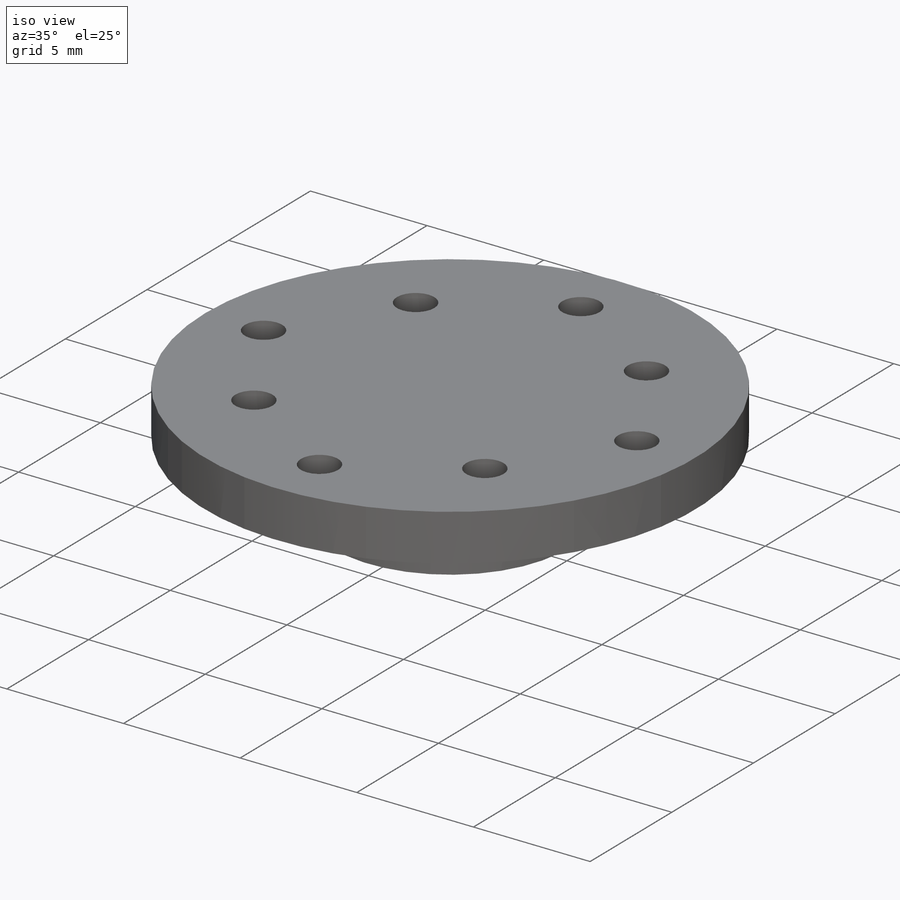
[diagram: iso view]
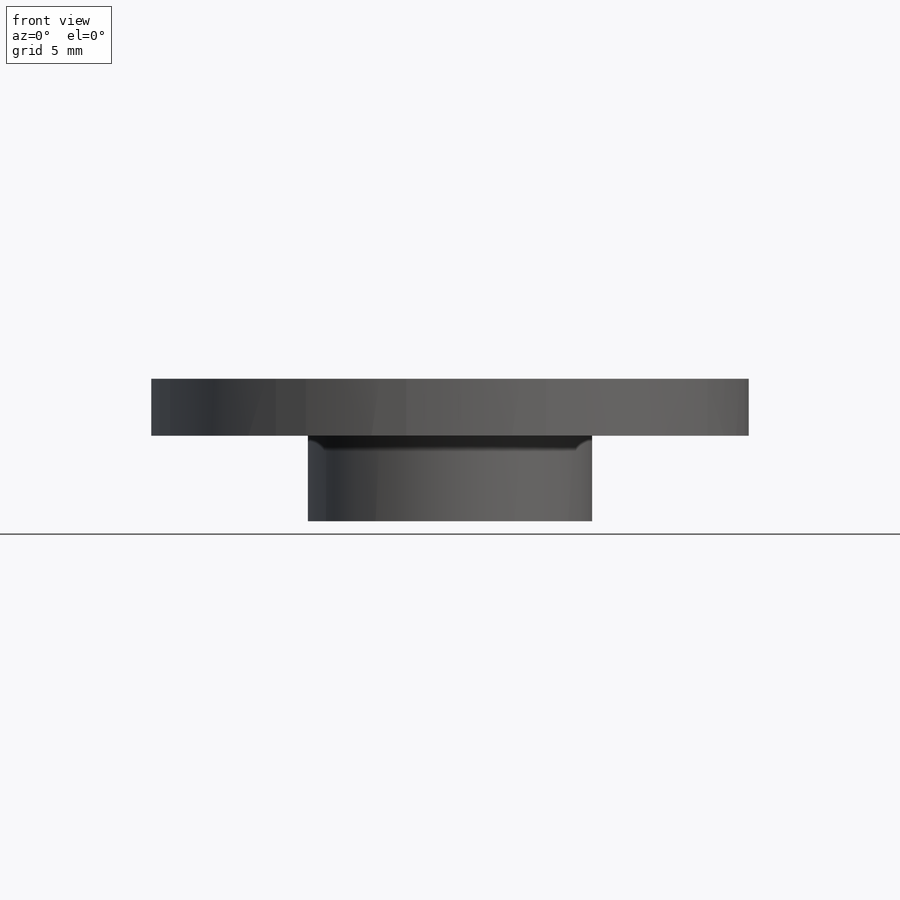
[diagram: front view]
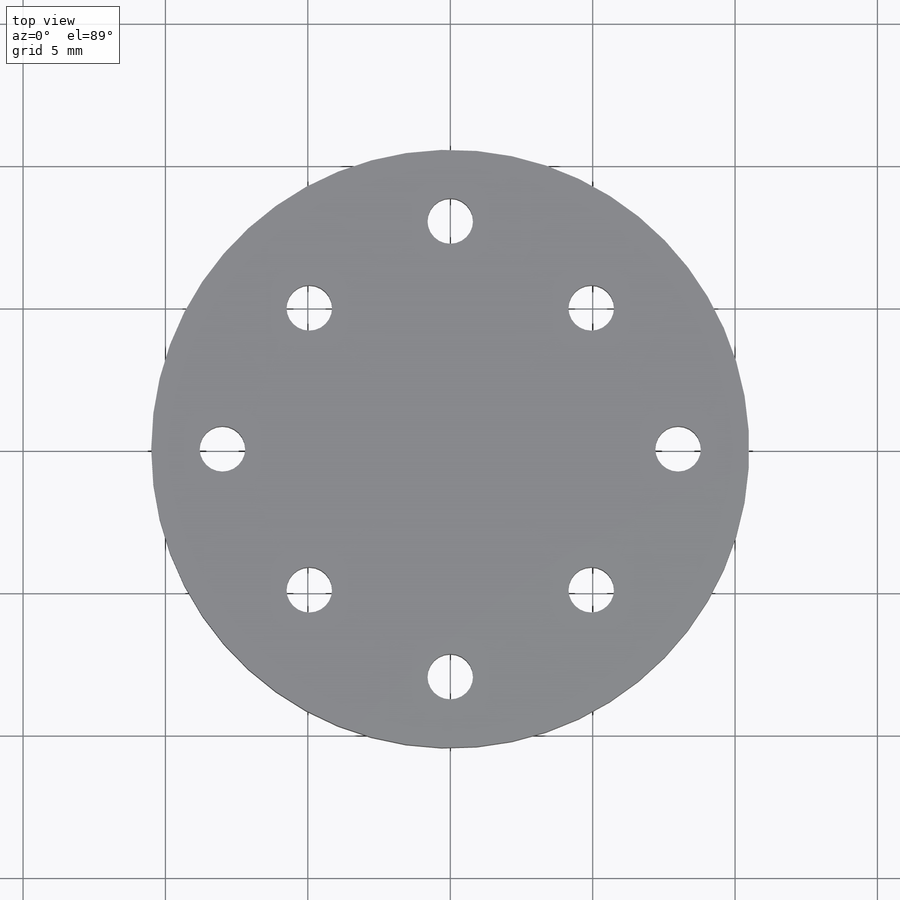
[diagram: top view]
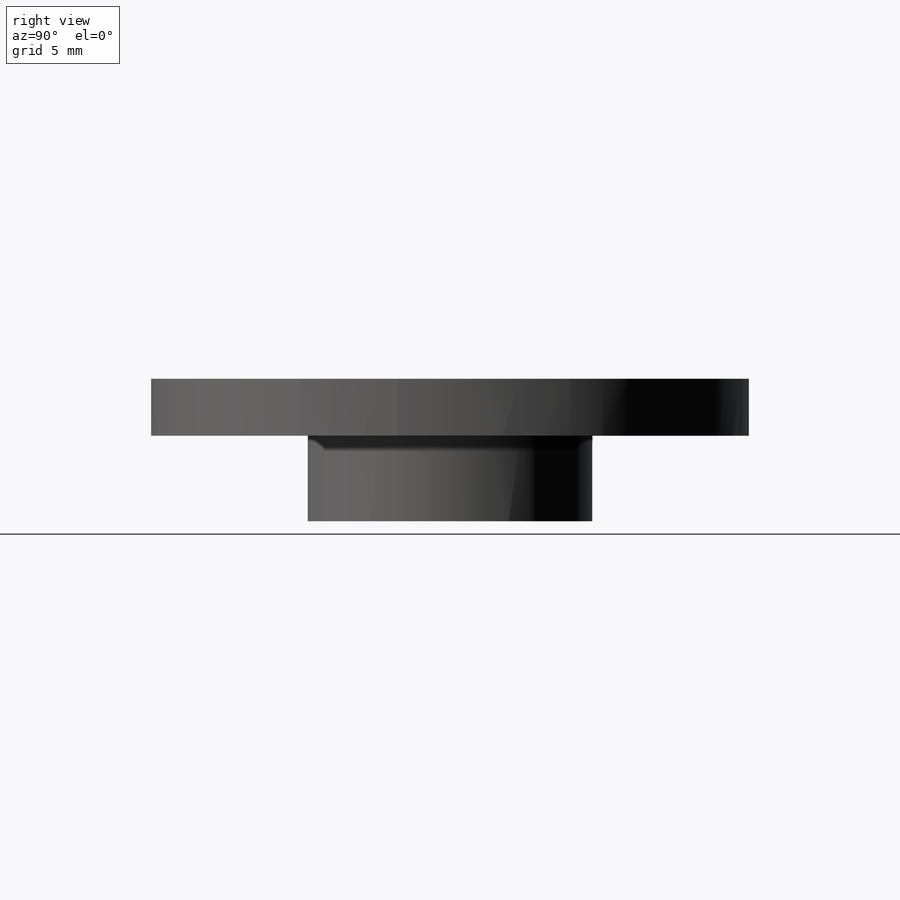
[diagram: right view]
SOLIDWORKS PART (.sldprt)
format: sldprt  version: not decoded by parser v0  size: 221,696 bytes
history: native  units: mm
features: sketch x3, thread x2, material x1, revolve x1, hole x1, pattern_circular x1 (+12 scaffold rows collapsed)
feature tree (21):
  scaffold x12  (default folders/planes/origin — collapsed)
  material  "6061 Alloy"
  sketch  "Sketch1"  dims[D1=21.0mm D2=10.0mm D3=2.0mm D4=5.0mm]
  revolve  "Revolve1"  Angle=360deg
  hole  "M2 Tapped Hole1"  Diameter=1.6mm Depth=6mm
  sketch  "Sketch3"  dims[D1=16.0mm D2=14.0mm]
  sketch  "Sketch4"  dims[hole-wizard template sketch: 50 standard entries collapsed; hole parameters above]
  thread  "Hole Thread1"  Diameter=2mm  [1 undecoded]
  thread  "Hole Thread2"  Diameter=2mm  [1 undecoded]
  pattern_circular  "CirPattern1"  Count=4 Angle=360deg
decode coverage: 8 of 8 modeling features carry decoded parameters
note: ~ marks probable driven/reference dimensions
note: 2 parameter values undecoded
note: suppression state not decoded; provenance and decode notes live in map.json
